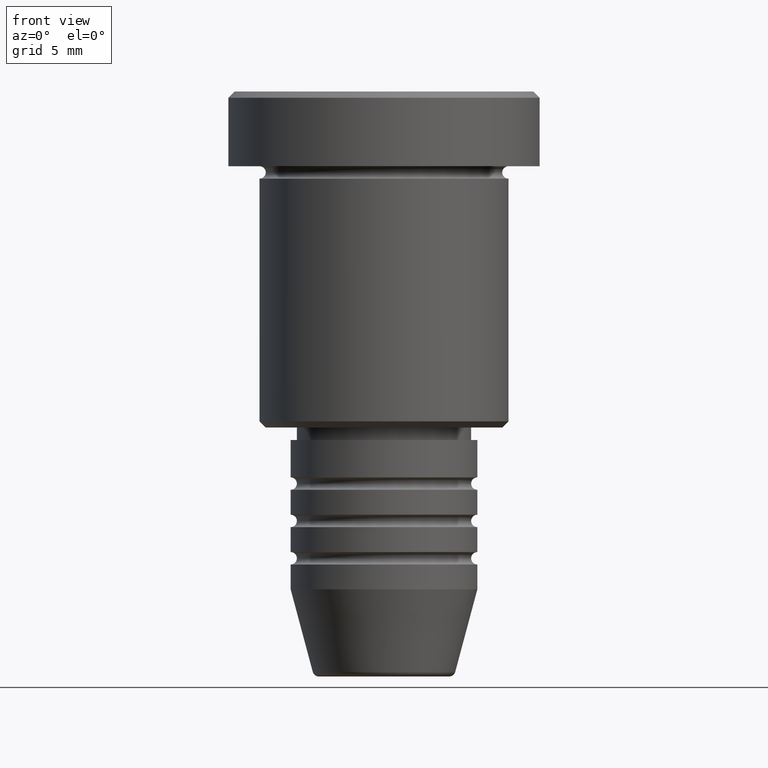
[diagram: clean part render]
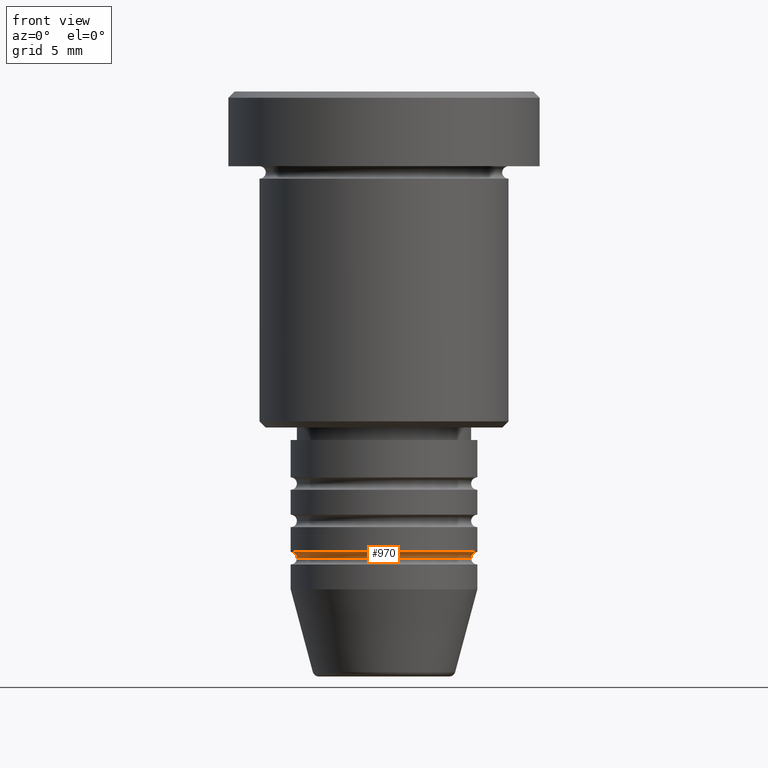
[diagram: same view with one face highlighted and labeled with its STEP entity id]
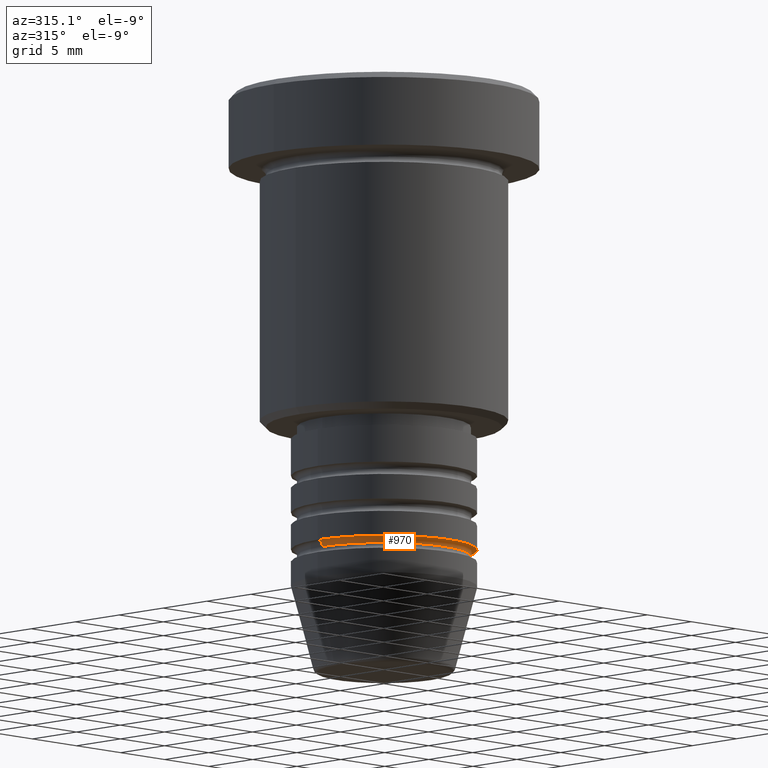
[diagram: same view with one face highlighted and labeled with its STEP entity id]
A machine part, front view. The second image highlights one B-rep face of the part: STEP entity #970.
A second angle (auxiliary view) of the same face is appended — the face is thin or edge-on in the first view.
In plain terms, the highlighted toroidal blend (fillet) surface has major radius 7.5 mm and minor (blend) radius 0.5 mm.
Its self-contained STEP definition (entity closure, byte-faithful):
#18 = CARTESIAN_POINT ( 'NONE',  ( -7.500000000000000000, 9.184850993605147944E-16, -36.99999999999998579 ) ) ;
#29 = ORIENTED_EDGE ( 'NONE', *, *, #1005, .F. ) ;
#35 = EDGE_LOOP ( 'NONE', ( #882, #500, #29, #214 ) ) ;
#48 = DIRECTION ( 'NONE',  ( 1.000000000000000000, 0.000000000000000000, 0.000000000000000000 ) ) ;
#65 = VERTEX_POINT ( 'NONE', #1103 ) ;
#92 = FACE_OUTER_BOUND ( 'NONE', #35, .T. ) ;
#129 = EDGE_CURVE ( 'NONE', #65, #381, #782, .T. ) ;
#182 = AXIS2_PLACEMENT_3D ( 'NONE', #938, #415, #48 ) ;
#185 = CARTESIAN_POINT ( 'NONE',  ( 0.000000000000000000, 0.000000000000000000, -36.99999999999998579 ) ) ;
#214 = ORIENTED_EDGE ( 'NONE', *, *, #956, .F. ) ;
#233 = AXIS2_PLACEMENT_3D ( 'NONE', #721, #647, #824 ) ;
#291 = DIRECTION ( 'NONE',  ( -1.224646799147353207E-16, 1.000000000000000000, 0.000000000000000000 ) ) ;
#297 = DIRECTION ( 'NONE',  ( -0.000000000000000000, -0.000000000000000000, 1.000000000000000000 ) ) ;
#314 = CIRCLE ( 'NONE', #182, 6.999999999999999112 ) ;
#381 = VERTEX_POINT ( 'NONE', #1061 ) ;
#415 = DIRECTION ( 'NONE',  ( -0.000000000000000000, -0.000000000000000000, 1.000000000000000000 ) ) ;
#420 = CARTESIAN_POINT ( 'NONE',  ( -6.999999999999999112, 8.878689293818310074E-16, -37.49999999999999289 ) ) ;
#459 = DIRECTION ( 'NONE',  ( 0.000000000000000000, 0.000000000000000000, -1.000000000000000000 ) ) ;
#500 = ORIENTED_EDGE ( 'NONE', *, *, #129, .T. ) ;
#531 = AXIS2_PLACEMENT_3D ( 'NONE', #185, #297, #736 ) ;
#553 = AXIS2_PLACEMENT_3D ( 'NONE', #836, #459, #1104 ) ;
#586 = CIRCLE ( 'NONE', #233, 0.5000000000000004441 ) ;
#627 = EDGE_CURVE ( 'NONE', #702, #65, #314, .T. ) ;
#647 = DIRECTION ( 'NONE',  ( -0.000000000000000000, -1.000000000000000000, -0.000000000000000000 ) ) ;
#679 = CIRCLE ( 'NONE', #531, 7.500000000000000000 ) ;
#702 = VERTEX_POINT ( 'NONE', #420 ) ;
#709 = AXIS2_PLACEMENT_3D ( 'NONE', #740, #291, #812 ) ;
#721 = CARTESIAN_POINT ( 'NONE',  ( -7.500000000000000000, 0.000000000000000000, -37.49999999999998579 ) ) ;
#736 = DIRECTION ( 'NONE',  ( 1.000000000000000000, 0.000000000000000000, 0.000000000000000000 ) ) ;
#740 = CARTESIAN_POINT ( 'NONE',  ( 7.500000000000000000, 9.184850993605147944E-16, -37.49999999999998579 ) ) ;
#782 = CIRCLE ( 'NONE', #709, 0.5000000000000004441 ) ;
#808 = TOROIDAL_SURFACE ( 'NONE', #553, 7.500000000000000000, 0.5000000000000000000 ) ;
#812 = DIRECTION ( 'NONE',  ( -1.000000000000000000, -1.224646799147351482E-16, 0.000000000000000000 ) ) ;
#824 = DIRECTION ( 'NONE',  ( 0.000000000000000000, 0.000000000000000000, -1.000000000000000000 ) ) ;
#836 = CARTESIAN_POINT ( 'NONE',  ( 0.000000000000000000, 0.000000000000000000, -37.49999999999998579 ) ) ;
#882 = ORIENTED_EDGE ( 'NONE', *, *, #627, .T. ) ;
#938 = CARTESIAN_POINT ( 'NONE',  ( 0.000000000000000000, 0.000000000000000000, -37.49999999999999289 ) ) ;
#939 = VERTEX_POINT ( 'NONE', #18 ) ;
#956 = EDGE_CURVE ( 'NONE', #702, #939, #586, .T. ) ;
#970 = ADVANCED_FACE ( 'NONE', ( #92 ), #808, .F. ) ;
#1005 = EDGE_CURVE ( 'NONE', #939, #381, #679, .T. ) ;
#1061 = CARTESIAN_POINT ( 'NONE',  ( 7.500000000000000000, 0.000000000000000000, -36.99999999999998579 ) ) ;
#1103 = CARTESIAN_POINT ( 'NONE',  ( 6.999999999999999112, 0.000000000000000000, -37.49999999999999289 ) ) ;
#1104 = DIRECTION ( 'NONE',  ( -1.000000000000000000, 0.000000000000000000, 0.000000000000000000 ) ) ;